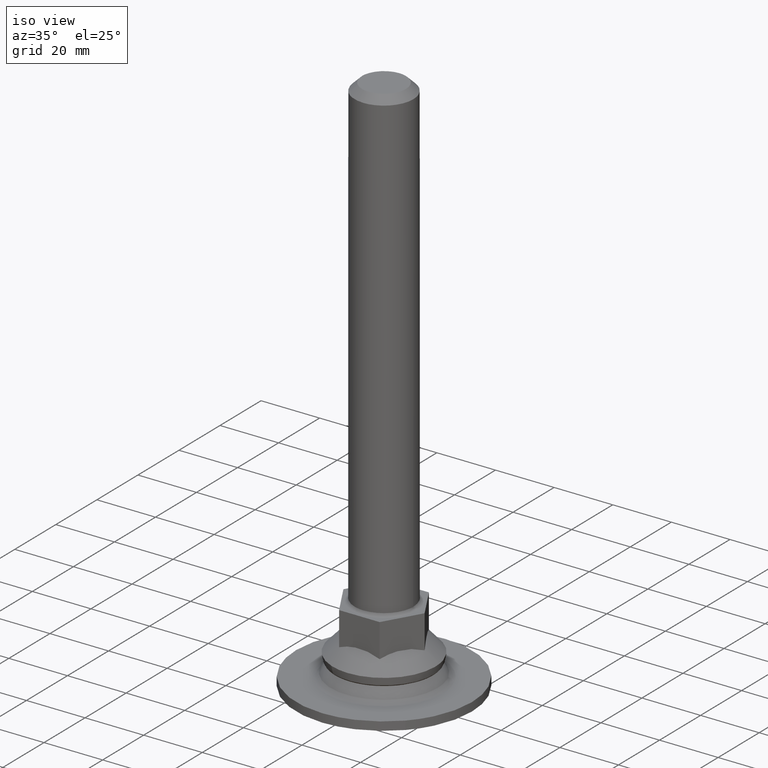
[diagram: clean part render]
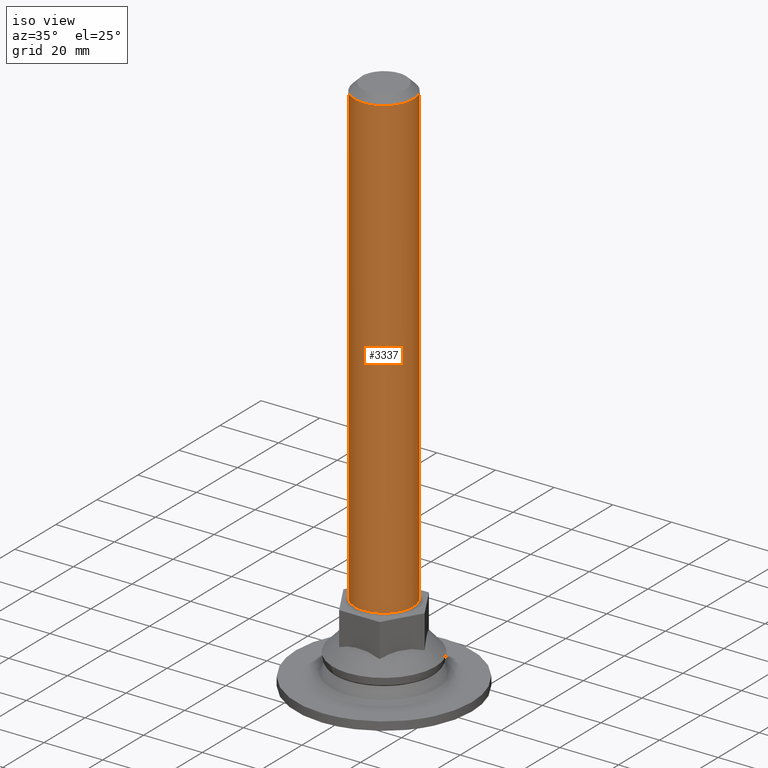
[diagram: same view with one face highlighted and labeled with its STEP entity id]
A machine part, iso view. The second image highlights one B-rep face of the part: STEP entity #3337.
In plain terms, the highlighted face is a freeform B-spline surface patch.
Its self-contained STEP definition (entity closure, byte-faithful):
#3049=CARTESIAN_POINT('',(-7.132504751329448,-7.009092898292257,183.499999878589590));
#3050=VERTEX_POINT('',#3049);
#3051=CARTESIAN_POINT('',(-7.220018159751735,-6.918912316209100,183.500000000000000));
#3052=VERTEX_POINT('',#3051);
#3053=CARTESIAN_POINT('',(-7.132504751329448,-7.009092898292257,183.499999878589590));
#3054=CARTESIAN_POINT('',(-7.220018159751735,-6.918912316209100,183.500000000000000));
#3055=QUASI_UNIFORM_CURVE('',1,(#3053,#3054),.UNSPECIFIED.,.F.,.U.);
#3056=EDGE_CURVE('',#3050,#3052,#3055,.T.);
#3131=CARTESIAN_POINT('',(-0.000001975097719,-9.999999999999805,183.500000000000000));
#3132=VERTEX_POINT('',#3131);
#3133=CARTESIAN_POINT('',(-0.000001975097719,-9.999999999999805,183.500000000000000));
#3134=CARTESIAN_POINT('',(-1.075456230941467,-10.000635277264500,183.499999981693610));
#3135=CARTESIAN_POINT('',(-2.936303580041367,-9.696777342037155,183.499999950018010));
#3136=CARTESIAN_POINT('',(-5.347298717061237,-8.560056764990046,183.499999908977600));
#3137=CARTESIAN_POINT('',(-6.581805424322681,-7.569733968642757,183.499999887963700));
#3138=CARTESIAN_POINT('',(-7.132504751329448,-7.009092898292257,183.499999878589590));
#3139=B_SPLINE_CURVE_WITH_KNOTS('',3,(#3133,#3134,#3135,#3136,#3137,#3138),.UNSPECIFIED.,.F.,.U.,(4,1,1,4),(0.000000049691712,3.226172353955314,5.583718529260958,7.941297207338428),.UNSPECIFIED.);
#3140=EDGE_CURVE('',#3132,#3050,#3139,.T.);
#3142=CARTESIAN_POINT('',(10.0,0.0,183.500000000000000));
#3143=VERTEX_POINT('',#3142);
#3144=CARTESIAN_POINT('',(10.0,0.0,183.500000000000000));
#3145=CARTESIAN_POINT('',(10.000058011861420,-0.613581442831595,183.500000000000000));
#3146=CARTESIAN_POINT('',(9.882911692910939,-1.881638889056371,183.500000000000000));
#3147=CARTESIAN_POINT('',(9.276450566844984,-3.974081725885090,183.500000000000000));
#3148=CARTESIAN_POINT('',(8.299796487116973,-5.698080158896893,183.499999999999800));
#3149=CARTESIAN_POINT('',(7.041428520478850,-7.156502225508695,183.500000000000110));
#3150=CARTESIAN_POINT('',(5.853226646851023,-8.168883717573209,183.499999999999890));
#3151=CARTESIAN_POINT('',(4.475447321157660,-8.983142531454877,183.500000000000310));
#3152=CARTESIAN_POINT('',(2.576775436909203,-9.756216088973954,183.500000000000910));
#3153=CARTESIAN_POINT('',(1.063651148346917,-10.000616905053599,183.499999999996900));
#3154=CARTESIAN_POINT('',(-0.000001975097719,-9.999999999999805,183.500000000000000));
#3155=B_SPLINE_CURVE_WITH_KNOTS('',3,(#3144,#3145,#3146,#3147,#3148,#3149,#3150,#3151,#3152,#3153,#3154),.UNSPECIFIED.,.F.,.U.,(4,1,1,1,1,1,1,1,4),(0.000000189320465,1.840749413625849,3.804295290929559,6.504133654622896,7.731366962447584,9.572093125496426,11.167449656683660,12.517375362342900,15.708062941964929),.UNSPECIFIED.);
#3156=EDGE_CURVE('',#3143,#3132,#3155,.T.);
#3158=CARTESIAN_POINT('',(7.220018159751751,6.918912316209116,183.500000000000000));
#3159=VERTEX_POINT('',#3158);
#3160=CARTESIAN_POINT('',(7.220018159751751,6.918912316209116,183.500000000000000));
#3161=CARTESIAN_POINT('',(7.633081113492971,6.487939600406923,183.500000000000000));
#3162=CARTESIAN_POINT('',(8.456580599603758,5.458138791415984,183.499999999999800));
#3163=CARTESIAN_POINT('',(9.358146814914159,3.716291078563150,183.500000000001190));
#3164=CARTESIAN_POINT('',(9.889213193769969,1.830663908358924,183.499999999998210));
#3165=CARTESIAN_POINT('',(10.000052507776241,0.596957698595684,183.500000000001510));
#3166=CARTESIAN_POINT('',(10.0,0.0,183.500000000000000));
#3167=B_SPLINE_CURVE_WITH_KNOTS('',3,(#3160,#3161,#3162,#3163,#3164,#3165,#3166),.UNSPECIFIED.,.F.,.U.,(4,1,1,1,4),(0.000000047169223,1.790880568624490,3.939911764487045,5.850216617968494,7.641097139394362),.UNSPECIFIED.);
#3168=EDGE_CURVE('',#3159,#3143,#3167,.T.);
#3203=CARTESIAN_POINT('',(-7.220017774805101,-6.918912004896315,26.999999999556302));
#3204=VERTEX_POINT('',#3203);
#3214=CARTESIAN_POINT('',(-7.220018159751735,-6.918912316209100,183.500000000000000));
#3215=CARTESIAN_POINT('',(-7.220017774805101,-6.918912004896315,26.999999999556302));
#3216=QUASI_UNIFORM_CURVE('',1,(#3214,#3215),.UNSPECIFIED.,.F.,.U.);
#3217=EDGE_CURVE('',#3052,#3204,#3216,.T.);
#3223=CARTESIAN_POINT('',(7.220017774805100,6.918912004896313,26.999999999556309));
#3224=VERTEX_POINT('',#3223);
#3225=CARTESIAN_POINT('',(7.220018159751751,6.918912316209116,183.500000000000000));
#3226=CARTESIAN_POINT('',(7.220017774805100,6.918912004896313,26.999999999556309));
#3227=QUASI_UNIFORM_CURVE('',1,(#3225,#3226),.UNSPECIFIED.,.F.,.U.);
#3228=EDGE_CURVE('',#3159,#3224,#3227,.T.);
#3266=CARTESIAN_POINT('',(7.220017876757927,6.918911898506577,187.412500000078500));
#3267=CARTESIAN_POINT('',(14.138929775264504,-0.301105978251350,187.412500000078550));
#3268=CARTESIAN_POINT('',(6.918911898506577,-7.220017876757927,187.412500000078500));
#3269=CARTESIAN_POINT('',(-0.301105978251350,-14.138929775264504,187.412500000078550));
#3270=CARTESIAN_POINT('',(-7.220017876757927,-6.918911898506577,187.412500000078500));
#3271=CARTESIAN_POINT('',(7.220017876757927,6.918911898506577,22.989687496778519));
#3272=CARTESIAN_POINT('',(14.138929775264504,-0.301105978251350,22.989687496778526));
#3273=CARTESIAN_POINT('',(6.918911898506577,-7.220017876757927,22.989687496778519));
#3274=CARTESIAN_POINT('',(-0.301105978251350,-14.138929775264504,22.989687496778508));
#3275=CARTESIAN_POINT('',(-7.220017876757927,-6.918911898506577,22.989687496778512));
#3283=(BOUNDED_SURFACE()B_SPLINE_SURFACE(2,1,((#3266,#3271),(#3267,#3272),(#3268,#3273),(#3269,#3274),(#3270,#3275)),.UNSPECIFIED.,.F.,.F.,.U.)B_SPLINE_SURFACE_WITH_KNOTS((3,2,3),(2,2),(0.0,16.568542494923800,33.137084989847587),(0.0,164.422812503300010),.UNSPECIFIED.)GEOMETRIC_REPRESENTATION_ITEM()RATIONAL_B_SPLINE_SURFACE(((1.0,1.0),(0.707106781186548,0.707106781186548),(1.0,1.0),(0.707106781186548,0.707106781186548),(1.0,1.0)))REPRESENTATION_ITEM('')SURFACE());
#3284=CARTESIAN_POINT('',(-0.062717271554582,-9.999803325258389,26.999999998429480));
#3285=VERTEX_POINT('',#3284);
#3286=CARTESIAN_POINT('',(-7.220017774805101,-6.918912004896315,26.999999999556302));
#3287=CARTESIAN_POINT('',(-6.672108890024363,-7.490944678665174,26.999999999469761));
#3288=CARTESIAN_POINT('',(-5.536651852853734,-8.423613895413833,26.999999999290448));
#3289=CARTESIAN_POINT('',(-3.817493100647717,-9.294763725283021,26.999999999019781));
#3290=CARTESIAN_POINT('',(-2.021127528828276,-9.850767009293241,26.999999998737120));
#3291=CARTESIAN_POINT('',(-0.813110379843939,-9.995237971748699,26.999999998547320));
#3292=CARTESIAN_POINT('',(-0.062717271554582,-9.999803325258389,26.999999998429480));
#3293=B_SPLINE_CURVE_WITH_KNOTS('',3,(#3286,#3287,#3288,#3289,#3290,#3291,#3292),.UNSPECIFIED.,.F.,.U.,(4,1,1,1,4),(0.000000051673121,2.376266843201030,4.377305449435652,5.753050949023852,8.004246134977205),.UNSPECIFIED.);
#3294=EDGE_CURVE('',#3204,#3285,#3293,.T.);
#3295=ORIENTED_EDGE('',*,*,#3294,.T.);
#3296=CARTESIAN_POINT('',(9.999210442036542,-0.125660398962142,26.999999996859010));
#3297=VERTEX_POINT('',#3296);
#3298=CARTESIAN_POINT('',(-0.062717271554582,-9.999803325258389,26.999999998429480));
#3299=CARTESIAN_POINT('',(0.466920728071029,-10.003152382722201,26.999999998346311));
#3300=CARTESIAN_POINT('',(1.608247149262287,-9.919467656708465,26.999999998167102));
#3301=CARTESIAN_POINT('',(3.235907361378775,-9.513771677141639,26.999999997912031));
#3302=CARTESIAN_POINT('',(4.806502347974090,-8.820976746187084,26.999999997665839));
#3303=CARTESIAN_POINT('',(6.276918268602115,-7.856793788848242,26.999999997435982));
#3304=CARTESIAN_POINT('',(7.489101980011236,-6.695909776754791,26.999999997246700));
#3305=CARTESIAN_POINT('',(8.614003763800893,-5.191591353201445,26.999999997071619));
#3306=CARTESIAN_POINT('',(9.649317627997164,-3.095307236427390,26.999999996910901));
#3307=CARTESIAN_POINT('',(9.986125635331923,-1.225715249357219,26.999999996860090));
#3308=CARTESIAN_POINT('',(9.999210442036542,-0.125660398962142,26.999999996859010));
#3309=B_SPLINE_CURVE_WITH_KNOTS('',3,(#3298,#3299,#3300,#3301,#3302,#3303,#3304,#3305,#3306,#3307,#3308),.UNSPECIFIED.,.F.,.U.,(4,1,1,1,1,1,1,1,4),(0.000000173640691,1.588955908251279,3.422362784111520,5.011335818361703,6.722557842446342,8.678129659485919,10.022619856762679,12.344986944834639,15.645114625116239),.UNSPECIFIED.);
#3310=EDGE_CURVE('',#3285,#3297,#3309,.T.);
#3311=ORIENTED_EDGE('',*,*,#3310,.T.);
#3312=CARTESIAN_POINT('',(9.999999999999998,0.0,27.0));
#3313=VERTEX_POINT('',#3312);
#3314=CARTESIAN_POINT('',(9.999210442036542,-0.125660398962142,26.999999996859010));
#3315=CARTESIAN_POINT('',(9.999999999999998,0.0,27.0));
#3316=QUASI_UNIFORM_CURVE('',1,(#3314,#3315),.UNSPECIFIED.,.F.,.U.);
#3317=EDGE_CURVE('',#3297,#3313,#3316,.T.);
#3318=ORIENTED_EDGE('',*,*,#3317,.T.);
#3319=CARTESIAN_POINT('',(9.999999999999998,0.0,27.0));
#3320=CARTESIAN_POINT('',(10.000042792700791,0.596956958321120,26.999999999999400));
#3321=CARTESIAN_POINT('',(9.882108412535176,1.910249008945676,26.999999999979540));
#3322=CARTESIAN_POINT('',(9.327866140946863,3.791649671001774,26.999999999890552));
#3323=CARTESIAN_POINT('',(8.406649012172776,5.520517846002639,26.999999999744141));
#3324=CARTESIAN_POINT('',(7.633086644352957,6.487942845652921,26.999999999621600));
#3325=CARTESIAN_POINT('',(7.220017774805100,6.918912004896313,26.999999999556309));
#3326=B_SPLINE_CURVE_WITH_KNOTS('',3,(#3319,#3320,#3321,#3322,#3323,#3324,#3325),.UNSPECIFIED.,.F.,.U.,(4,1,1,1,4),(0.000000047174526,1.790880534183175,3.939911688738478,5.850216505481510,7.641096992490017),.UNSPECIFIED.);
#3327=EDGE_CURVE('',#3313,#3224,#3326,.T.);
#3328=ORIENTED_EDGE('',*,*,#3327,.T.);
#3329=ORIENTED_EDGE('',*,*,#3228,.F.);
#3330=ORIENTED_EDGE('',*,*,#3168,.T.);
#3331=ORIENTED_EDGE('',*,*,#3156,.T.);
#3332=ORIENTED_EDGE('',*,*,#3140,.T.);
#3333=ORIENTED_EDGE('',*,*,#3056,.T.);
#3334=ORIENTED_EDGE('',*,*,#3217,.T.);
#3335=EDGE_LOOP('',(#3295,#3311,#3318,#3328,#3329,#3330,#3331,#3332,#3333,#3334));
#3336=FACE_OUTER_BOUND('',#3335,.T.);
#3337=ADVANCED_FACE('',(#3336),#3283,.T.);